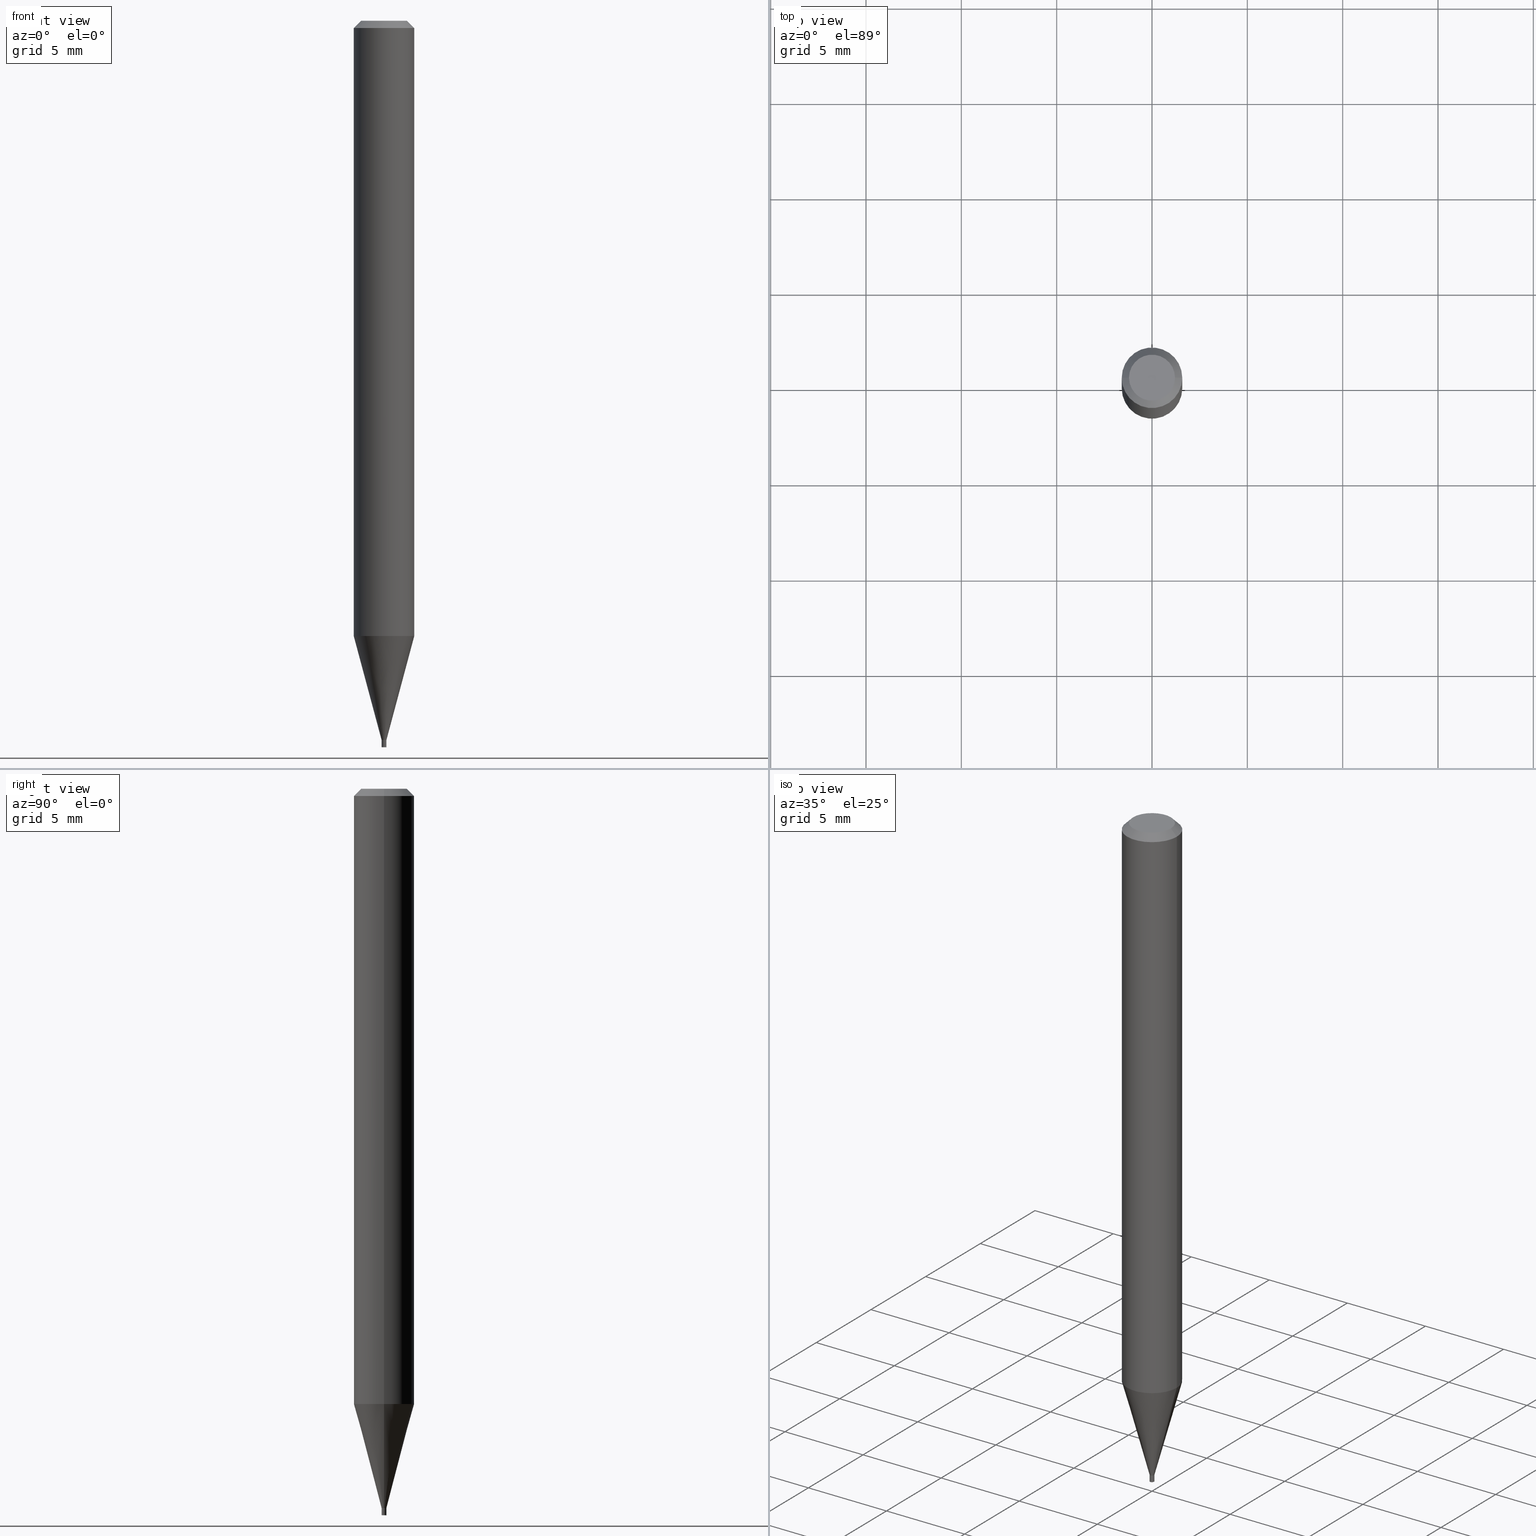
[diagram: canonical four-view strip — front | top / right | iso, engineering-drawing reading convention]
A machine part, canonical four-view strip (front | top / right | iso — engineering-drawing reading convention). The complete STEP part file that produces these views, byte-faithful:
ISO-10303-21;
HEADER;
FILE_DESCRIPTION (( 'STEP AP203' ),
    '1' );
FILE_NAME ('04045.STEP',
    '2024-03-14T16:55:15',
    ( '' ),
    ( '' ),
    'SwSTEP 2.0',
    'SolidWorks 2023',
    '' );
FILE_SCHEMA (( 'CONFIG_CONTROL_DESIGN' ));
ENDSEC;

DATA;
#1 = CARTESIAN_POINT ( 'NONE',  ( -0.004500000000000000527, -5.152875365072865772E-15, -1.484999999999999876 ) ) ;
#2 = EDGE_CURVE ( 'NONE', #231, #87, #169, .T. ) ;
#3 = CARTESIAN_POINT ( 'NONE',  ( 3.631521177184927577E-29, -5.184849788182070703E-15, -1.484999999999999876 ) ) ;
#4 = CYLINDRICAL_SURFACE ( 'NONE', #466, 0.06250000000000000000 ) ;
#5 = CIRCLE ( 'NONE', #329, 0.04749999999999999362 ) ;
#6 = VECTOR ( 'NONE', #371, 39.37007874015748143 ) ;
#7 = ADVANCED_FACE ( 'NONE', ( #281 ), #315, .T. ) ;
#8 = VERTEX_POINT ( 'NONE', #418 ) ;
#9 = EDGE_CURVE ( 'NONE', #179, #300, #91, .T. ) ;
#10 = ORIENTED_EDGE ( 'NONE', *, *, #126, .F. ) ;
#11 = APPROVAL ( #260, 'UNSPECIFIED' ) ;
#12 = ORIENTED_EDGE ( 'NONE', *, *, #363, .F. ) ;
#13 = DIRECTION ( 'NONE',  ( 1.000000000000000000, -6.982962677686265922E-15, 4.876176775795935793E-29 ) ) ;
#14 = MECHANICAL_CONTEXT ( 'NONE', #183, 'mechanical' ) ;
#15 = FACE_OUTER_BOUND ( 'NONE', #199, .T. ) ;
#16 = ORIENTED_EDGE ( 'NONE', *, *, #248, .F. ) ;
#17 = DESIGN_CONTEXT ( 'detailed design', #322, 'design' ) ;
#18 = CARTESIAN_POINT ( 'NONE',  ( 3.631521177184928138E-29, -5.184849788182071492E-15, -1.485000000000000098 ) ) ;
#19 = ORIENTED_EDGE ( 'NONE', *, *, #185, .T. ) ;
#20 = APPROVAL ( #321, 'UNSPECIFIED' ) ;
#21 = CARTESIAN_POINT ( 'NONE',  ( 3.491481338846764088E-17, 0.004999999999994815016, -1.485000000000000098 ) ) ;
#22 = EDGE_CURVE ( 'NONE', #242, #23, #291, .T. ) ;
#23 = VERTEX_POINT ( 'NONE', #412 ) ;
#24 = AXIS2_PLACEMENT_3D ( 'NONE', #395, #402, #77 ) ;
#25 = DATE_AND_TIME ( #350, #421 ) ;
#26 = CC_DESIGN_APPROVAL ( #101, ( #381 ) ) ;
#27 = CARTESIAN_POINT ( 'NONE',  ( 3.106740881786981637E-29, -4.435602607543199263E-15, -1.270407078564789183 ) ) ;
#28 = CLOSED_SHELL ( 'NONE', ( #286, #385, #108, #273 ) ) ;
#29 = CARTESIAN_POINT ( 'NONE',  ( -0.004999999999999651425, -5.149322651394068818E-15, -1.485000000000000098 ) ) ;
#30 = DIRECTION ( 'NONE',  ( -1.000000000000000000, 6.982962677686265922E-15, -4.876176775795935793E-29 ) ) ;
#31 = DIRECTION ( 'NONE',  ( -2.445468806185136597E-29, 3.491481338843145583E-15, 1.000000000000000000 ) ) ;
#32 = DIRECTION ( 'NONE',  ( -1.000000000000000000, 6.982962677686266711E-15, 0.000000000000000000 ) ) ;
#33 = APPROVAL_PERSON_ORGANIZATION ( #268, #101, #160 ) ;
#34 = AXIS2_PLACEMENT_3D ( 'NONE', #27, #31, #279 ) ;
#35 = DIRECTION ( 'NONE',  ( 1.000000000000000000, -6.982962677686267499E-15, 4.852736867747366768E-29 ) ) ;
#36 =( NAMED_UNIT ( * ) PLANE_ANGLE_UNIT ( ) SI_UNIT ( $, .RADIAN. ) );
#37 = CC_DESIGN_PERSON_AND_ORGANIZATION_ASSIGNMENT ( #42, #151, ( #192 ) ) ;
#38 = PERSON_AND_ORGANIZATION_ROLE ( 'design_supplier' ) ;
#39 = DIRECTION ( 'NONE',  ( 1.000000000000000000, -6.982962677686237523E-15, 0.000000000000000000 ) ) ;
#40 = APPROVAL_ROLE ( '' ) ;
#41 = CLOSED_SHELL ( 'NONE', ( #388, #89, #102, #7, #336, #145, #159, #352, #270, #97, #191, #320 ) ) ;
#42 = PERSON_AND_ORGANIZATION ( #390, #383 ) ;
#43 = EDGE_CURVE ( 'NONE', #345, #303, #244, .T. ) ;
#44 = CIRCLE ( 'NONE', #168, 0.005000000000000196128 ) ;
#45 = AXIS2_PLACEMENT_3D ( 'NONE', #358, #67, #32 ) ;
#46 = CIRCLE ( 'NONE', #369, 0.06250000000000000000 ) ;
#47 = ORIENTED_EDGE ( 'NONE', *, *, #82, .F. ) ;
#48 = DIRECTION ( 'NONE',  ( 0.000000000000000000, 0.000000000000000000, 1.000000000000000000 ) ) ;
#49 = ORIENTED_EDGE ( 'NONE', *, *, #185, .F. ) ;
#50 = CYLINDRICAL_SURFACE ( 'NONE', #280, 0.005000000000000000104 ) ;
#51 = ORIENTED_EDGE ( 'NONE', *, *, #313, .T. ) ;
#52 = ORIENTED_EDGE ( 'NONE', *, *, #233, .T. ) ;
#53 = DIRECTION ( 'NONE',  ( -2.445468806185136597E-29, 3.491481338843145583E-15, 1.000000000000000000 ) ) ;
#54 = CIRCLE ( 'NONE', #393, 0.06250000000000000000 ) ;
#55 = ORIENTED_EDGE ( 'NONE', *, *, #359, .T. ) ;
#56 = APPLICATION_PROTOCOL_DEFINITION ( 'international standard', 'config_control_design', 1994, #322 ) ;
#57 = PLANE ( 'NONE',  #386 ) ;
#58 = EDGE_LOOP ( 'NONE', ( #266, #47, #51, #308 ) ) ;
#59 = PERSON_AND_ORGANIZATION_ROLE ( 'design_owner' ) ;
#60 = DIRECTION ( 'NONE',  ( -2.445468806185136597E-29, 3.491481338843145583E-15, 1.000000000000000000 ) ) ;
#61 = CC_DESIGN_SECURITY_CLASSIFICATION ( #192, ( #208 ) ) ;
#62 = CARTESIAN_POINT ( 'NONE',  ( 0.004999999999999651425, -5.219764601570499986E-15, -1.485000000000000098 ) ) ;
#63 = CARTESIAN_POINT ( 'NONE',  ( 0.004500000000000000527, -5.216273120231658556E-15, -1.484999999999999876 ) ) ;
#64 = AXIS2_PLACEMENT_3D ( 'NONE', #221, #391, #331 ) ;
#65 = LINE ( 'NONE', #181, #69 ) ;
#66 = CARTESIAN_POINT ( 'NONE',  ( 0.000000000000000000, 0.000000000000000000, 0.000000000000000000 ) ) ;
#67 = DIRECTION ( 'NONE',  ( 2.445468806185136597E-29, -3.491481338843145583E-15, -1.000000000000000000 ) ) ;
#68 = CYLINDRICAL_SURFACE ( 'NONE', #367, 0.004999999999999922909 ) ;
#69 = VECTOR ( 'NONE', #215, 39.37007874015748143 ) ;
#70 = AXIS2_PLACEMENT_3D ( 'NONE', #136, #99, #175 ) ;
#71 = CC_DESIGN_PERSON_AND_ORGANIZATION_ASSIGNMENT ( #361, #110, ( #208 ) ) ;
#72 = CALENDAR_DATE ( 2024, 14, 3 ) ;
#73 = LENGTH_MEASURE_WITH_UNIT ( LENGTH_MEASURE( 0.02539999999999999897 ), #249 );
#74 = AXIS2_PLACEMENT_3D ( 'NONE', #458, #362, #284 ) ;
#75 = CARTESIAN_POINT ( 'NONE',  ( 0.004500000000000000527, -5.216273120231658556E-15, -1.484999999999999876 ) ) ;
#76 = EDGE_CURVE ( 'NONE', #87, #231, #201, .T. ) ;
#77 = DIRECTION ( 'NONE',  ( 1.000000000000000000, -6.982962677686266711E-15, 0.000000000000000000 ) ) ;
#78 = ORIENTED_EDGE ( 'NONE', *, *, #146, .F. ) ;
#79 = DIRECTION ( 'NONE',  ( 1.000000000000000000, -6.982962677686237523E-15, 0.000000000000000000 ) ) ;
#80 = EDGE_CURVE ( 'NONE', #306, #235, #423, .T. ) ;
#81 = CIRCLE ( 'NONE', #307, 0.005000000000000196128 ) ;
#82 = EDGE_CURVE ( 'NONE', #376, #224, #420, .T. ) ;
#83 = EDGE_LOOP ( 'NONE', ( #85, #408, #441, #10 ) ) ;
#84 = DATE_AND_TIME ( #296, #98 ) ;
#85 = ORIENTED_EDGE ( 'NONE', *, *, #433, .F. ) ;
#86 = VERTEX_POINT ( 'NONE', #245 ) ;
#87 = VERTEX_POINT ( 'NONE', #75 ) ;
#88 = CARTESIAN_POINT ( 'NONE',  ( 0.000000000000000000, 0.000000000000000000, 0.000000000000000000 ) ) ;
#89 = ADVANCED_FACE ( 'NONE', ( #437 ), #452, .T. ) ;
#90 = CC_DESIGN_APPROVAL ( #11, ( #208 ) ) ;
#91 = CIRCLE ( 'NONE', #34, 0.06250000000000000000 ) ;
#92 = ORIENTED_EDGE ( 'NONE', *, *, #9, .T. ) ;
#93 = CARTESIAN_POINT ( 'NONE',  ( 3.316907271900976096E-16, 0.04749999999999999362, -1.230947746555162994E-18 ) ) ;
#94 = CARTESIAN_POINT ( 'NONE',  ( 3.631521177184927577E-29, -5.184849788182070703E-15, -1.484999999999999876 ) ) ;
#95 = DIRECTION ( 'NONE',  ( 1.000000000000000000, -6.982962677686267499E-15, 4.876176775795935793E-29 ) ) ;
#96 = LINE ( 'NONE', #305, #143 ) ;
#97 = ADVANCED_FACE ( 'NONE', ( #432 ), #292, .F. ) ;
#98 = LOCAL_TIME ( 12, 55, 15.00000000000000000, #265 ) ;
#99 = DIRECTION ( 'NONE',  ( -2.445468806185136597E-29, 3.491481338843145583E-15, 1.000000000000000000 ) ) ;
#100 = FACE_OUTER_BOUND ( 'NONE', #447, .T. ) ;
#101 = APPROVAL ( #229, 'UNSPECIFIED' ) ;
#102 = ADVANCED_FACE ( 'NONE', ( #124 ), #410, .T. ) ;
#103 = DIRECTION ( 'NONE',  ( 1.000000000000000000, -6.982962677686265922E-15, 4.876176775795935793E-29 ) ) ;
#104 = VECTOR ( 'NONE', #344, 39.37007874015748143 ) ;
#105 = APPROVAL_PERSON_ORGANIZATION ( #220, #20, #40 ) ;
#106 =( NAMED_UNIT ( * ) SI_UNIT ( $, .STERADIAN. ) SOLID_ANGLE_UNIT ( ) );
#107 = DATE_AND_TIME ( #72, #290 ) ;
#108 = ADVANCED_FACE ( 'NONE', ( #232 ), #118, .T. ) ;
#109 = CARTESIAN_POINT ( 'NONE',  ( -0.005000000000000000104, -5.175508761435389793E-15, -1.500000000000000222 ) ) ;
#110 = PERSON_AND_ORGANIZATION_ROLE ( 'creator' ) ;
#111 = CIRCLE ( 'NONE', #272, 0.005000000000000000104 ) ;
#112 = CONICAL_SURFACE ( 'NONE', #430, 0.004999999999999651425, 0.2617993877991502960 ) ;
#113 = DIRECTION ( 'NONE',  ( -0.7071067811869508057, 7.493145998871811975E-15, 0.7071067811861442287 ) ) ;
#114 = DIRECTION ( 'NONE',  ( -2.445468806185136597E-29, 3.491481338843145583E-15, 1.000000000000000000 ) ) ;
#115 = CARTESIAN_POINT ( 'NONE',  ( 3.668203209277705088E-31, -5.237222008264718399E-17, -0.01499999999999999944 ) ) ;
#116 = PRODUCT_RELATED_PRODUCT_CATEGORY ( 'detail', '', ( #297 ) ) ;
#117 = EDGE_LOOP ( 'NONE', ( #397, #52, #340, #409 ) ) ;
#118 = CYLINDRICAL_SURFACE ( 'NONE', #377, 0.005000000000000000104 ) ;
#119 = ORIENTED_EDGE ( 'NONE', *, *, #368, .T. ) ;
#120 = EDGE_LOOP ( 'NONE', ( #341, #401, #125, #16 ) ) ;
#121 = AXIS2_PLACEMENT_3D ( 'NONE', #193, #147, #39 ) ;
#122 = ORIENTED_EDGE ( 'NONE', *, *, #227, .F. ) ;
#123 = ORIENTED_EDGE ( 'NONE', *, *, #76, .F. ) ;
#124 = FACE_OUTER_BOUND ( 'NONE', #262, .T. ) ;
#125 = ORIENTED_EDGE ( 'NONE', *, *, #278, .F. ) ;
#126 = EDGE_CURVE ( 'NONE', #333, #157, #81, .T. ) ;
#127 = ORIENTED_EDGE ( 'NONE', *, *, #2, .F. ) ;
#128 = ADVANCED_BREP_SHAPE_REPRESENTATION ( '04045', ( #264, #255, #453 ), #158 ) ;
#129 = FACE_OUTER_BOUND ( 'NONE', #372, .T. ) ;
#130 = ORIENTED_EDGE ( 'NONE', *, *, #43, .F. ) ;
#131 = VECTOR ( 'NONE', #141, 39.37007874015748143 ) ;
#132 = AXIS2_PLACEMENT_3D ( 'NONE', #360, #171, #35 ) ;
#133 = CARTESIAN_POINT ( 'NONE',  ( 0.000000000000000000, 0.000000000000000000, 0.000000000000000000 ) ) ;
#134 = DIRECTION ( 'NONE',  ( -2.445468806185136597E-29, 3.491481338843145583E-15, 1.000000000000000000 ) ) ;
#135 = DIRECTION ( 'NONE',  ( 1.000000000000000000, -6.982962677686237523E-15, 0.000000000000000000 ) ) ;
#136 = CARTESIAN_POINT ( 'NONE',  ( 3.668203209277704895E-29, -5.237222008264718177E-15, -1.500000000000000222 ) ) ;
#137 = DIRECTION ( 'NONE',  ( -2.445468806185136597E-29, 3.491481338843145583E-15, 1.000000000000000000 ) ) ;
#138 = LOCAL_TIME ( 12, 55, 15.00000000000000000, #188 ) ;
#139 = DIRECTION ( 'NONE',  ( -0.2588190451025215721, 5.211531920934551831E-15, 0.9659258262890679791 ) ) ;
#140 = DIRECTION ( 'NONE',  ( 1.000000000000000000, -6.982962677686224112E-15, 0.000000000000000000 ) ) ;
#141 = DIRECTION ( 'NONE',  ( 0.2588190451025215721, 1.565188264969619995E-15, 0.9659258262890679791 ) ) ;
#142 = FACE_OUTER_BOUND ( 'NONE', #349, .T. ) ;
#143 = VECTOR ( 'NONE', #450, 39.37007874015748143 ) ;
#144 = DATE_AND_TIME ( #463, #138 ) ;
#145 = ADVANCED_FACE ( 'NONE', ( #200 ), #456, .T. ) ;
#146 = EDGE_CURVE ( 'NONE', #179, #8, #267, .T. ) ;
#147 = DIRECTION ( 'NONE',  ( -2.445468806185136597E-29, 3.491481338843145583E-15, 1.000000000000000000 ) ) ;
#148 = CONICAL_SURFACE ( 'NONE', #45, 0.06250000000000000000, 0.7853981633974373988 ) ;
#149 = ORIENTED_EDGE ( 'NONE', *, *, #204, .T. ) ;
#150 = FACE_OUTER_BOUND ( 'NONE', #357, .T. ) ;
#151 = PERSON_AND_ORGANIZATION_ROLE ( 'classification_officer' ) ;
#152 = AXIS2_PLACEMENT_3D ( 'NONE', #263, #335, #438 ) ;
#153 = CARTESIAN_POINT ( 'NONE',  ( 3.106740881786981637E-29, -4.435602607543199263E-15, -1.270407078564789183 ) ) ;
#154 = DIRECTION ( 'NONE',  ( -2.438088387897960049E-29, 3.491481338843145188E-15, 1.000000000000000000 ) ) ;
#155 = PERSON_AND_ORGANIZATION ( #390, #383 ) ;
#156 = ORIENTED_EDGE ( 'NONE', *, *, #204, .F. ) ;
#157 = VERTEX_POINT ( 'NONE', #449 ) ;
#158 =( GEOMETRIC_REPRESENTATION_CONTEXT ( 3 ) GLOBAL_UNCERTAINTY_ASSIGNED_CONTEXT ( ( #346 ) ) GLOBAL_UNIT_ASSIGNED_CONTEXT ( ( #247, #36, #106 ) ) REPRESENTATION_CONTEXT ( 'NONE', 'WORKASPACE' ) );
#159 = ADVANCED_FACE ( 'NONE', ( #150 ), #4, .T. ) ;
#160 = APPROVAL_ROLE ( '' ) ;
#161 = CARTESIAN_POINT ( 'NONE',  ( 0.004999999999999922909, -3.491481338843079861E-17, 2.438088387897930324E-31 ) ) ;
#162 = ORIENTED_EDGE ( 'NONE', *, *, #82, .T. ) ;
#163 = ORIENTED_EDGE ( 'NONE', *, *, #126, .T. ) ;
#164 = CARTESIAN_POINT ( 'NONE',  ( -0.06250000000000000000, 4.440892098500626162E-16, -3.074334431409316114E-30 ) ) ;
#165 = CARTESIAN_POINT ( 'NONE',  ( -0.005000000000000000104, -5.175508761435389793E-15, -1.485000000000000098 ) ) ;
#166 = EDGE_LOOP ( 'NONE', ( #123, #127 ) ) ;
#167 = ORIENTED_EDGE ( 'NONE', *, *, #368, .F. ) ;
#168 = AXIS2_PLACEMENT_3D ( 'NONE', #173, #137, #277 ) ;
#169 = CIRCLE ( 'NONE', #330, 0.004500000000000000527 ) ;
#170 = CARTESIAN_POINT ( 'NONE',  ( -0.004500000000000000527, -5.150226137898754571E-15, -1.484999999999999876 ) ) ;
#171 = DIRECTION ( 'NONE',  ( -2.445468806185136597E-29, 3.491481338843145583E-15, 1.000000000000000000 ) ) ;
#172 = CARTESIAN_POINT ( 'NONE',  ( -8.051188380117617343E-45, 1.149496322079166104E-30, 3.292288316969884985E-16 ) ) ;
#173 = CARTESIAN_POINT ( 'NONE',  ( 3.630298442781835897E-29, -5.183104047512649988E-15, -1.484500000000000153 ) ) ;
#174 = DIRECTION ( 'NONE',  ( 1.000000000000000000, -6.982962677686267499E-15, 4.852736867747366768E-29 ) ) ;
#175 = DIRECTION ( 'NONE',  ( 1.000000000000000000, -6.982962677686332186E-15, 0.000000000000000000 ) ) ;
#176 = CIRCLE ( 'NONE', #429, 0.005000000000000000104 ) ;
#177 = LINE ( 'NONE', #210, #392 ) ;
#178 = CIRCLE ( 'NONE', #24, 0.06250000000000000000 ) ;
#179 = VERTEX_POINT ( 'NONE', #251 ) ;
#180 = FACE_OUTER_BOUND ( 'NONE', #58, .T. ) ;
#181 = CARTESIAN_POINT ( 'NONE',  ( -0.06250000000000000000, 3.840629472727444916E-16, -0.01499999999999999944 ) ) ;
#182 = DIRECTION ( 'NONE',  ( 1.000000000000000000, -6.982962677686332186E-15, 0.000000000000000000 ) ) ;
#183 = APPLICATION_CONTEXT ( 'configuration controlled 3d designs of mechanical parts and assemblies' ) ;
#184 = DIRECTION ( 'NONE',  ( -2.445468806185136877E-29, 3.491481338843145188E-15, 1.000000000000000000 ) ) ;
#185 = EDGE_CURVE ( 'NONE', #86, #8, #178, .T. ) ;
#186 = CALENDAR_DATE ( 2024, 14, 3 ) ;
#187 = CC_DESIGN_APPROVAL ( #20, ( #192 ) ) ;
#188 = COORDINATED_UNIVERSAL_TIME_OFFSET ( 5, 0, .BEHIND. ) ;
#189 = CARTESIAN_POINT ( 'NONE',  ( 3.631521177184927577E-29, -5.184849788182070703E-15, -1.484999999999999876 ) ) ;
#190 = CC_DESIGN_PERSON_AND_ORGANIZATION_ASSIGNMENT ( #289, #38, ( #208 ) ) ;
#191 = ADVANCED_FACE ( 'NONE', ( #394 ), #309, .T. ) ;
#192 = SECURITY_CLASSIFICATION ( '', '', #460 ) ;
#193 = CARTESIAN_POINT ( 'NONE',  ( 3.631521177184928138E-29, -5.184849788182071492E-15, -1.485000000000000098 ) ) ;
#194 = ORIENTED_EDGE ( 'NONE', *, *, #80, .F. ) ;
#195 = ORIENTED_EDGE ( 'NONE', *, *, #359, .F. ) ;
#196 = ORIENTED_EDGE ( 'NONE', *, *, #227, .T. ) ;
#197 = EDGE_CURVE ( 'NONE', #300, #179, #46, .T. ) ;
#198 = DIRECTION ( 'NONE',  ( 1.000000000000000000, -6.982962677686265922E-15, 4.876176775795935793E-29 ) ) ;
#199 = EDGE_LOOP ( 'NONE', ( #443, #202 ) ) ;
#200 = FACE_OUTER_BOUND ( 'NONE', #117, .T. ) ;
#201 = CIRCLE ( 'NONE', #64, 0.004500000000000000527 ) ;
#202 = ORIENTED_EDGE ( 'NONE', *, *, #363, .T. ) ;
#203 = PERSON_AND_ORGANIZATION_ROLE ( 'creator' ) ;
#204 = EDGE_CURVE ( 'NONE', #8, #86, #54, .T. ) ;
#205 = COORDINATED_UNIVERSAL_TIME_OFFSET ( 5, 0, .BEHIND. ) ;
#206 = DIRECTION ( 'NONE',  ( 2.438088387897960049E-29, -3.491481338843145188E-15, -1.000000000000000000 ) ) ;
#207 = EDGE_LOOP ( 'NONE', ( #379, #444, #194, #122 ) ) ;
#208 = PRODUCT_DEFINITION_FORMATION_WITH_SPECIFIED_SOURCE ( 'ANY', '', #297, .NOT_KNOWN. ) ;
#209 = AXIS2_PLACEMENT_3D ( 'NONE', #338, #154, #13 ) ;
#210 = CARTESIAN_POINT ( 'NONE',  ( 0.06250000000000000000, -4.811533449433679005E-16, -0.01499999999999999944 ) ) ;
#211 = CARTESIAN_POINT ( 'NONE',  ( 0.005000000000000000104, -5.272136821653149826E-15, -1.500000000000000222 ) ) ;
#212 = DIRECTION ( 'NONE',  ( 1.000000000000000000, -6.982962677686332186E-15, 0.000000000000000000 ) ) ;
#213 = EDGE_CURVE ( 'NONE', #345, #235, #378, .T. ) ;
#214 = VECTOR ( 'NONE', #139, 39.37007874015748143 ) ;
#215 = DIRECTION ( 'NONE',  ( -0.7071067811865398012, 2.468850131082175808E-15, -0.7071067811865552333 ) ) ;
#216 = DIRECTION ( 'NONE',  ( 1.000000000000000000, -6.982962677686266711E-15, 4.876176775795935793E-29 ) ) ;
#217 = SHAPE_DEFINITION_REPRESENTATION ( #252, #128 ) ;
#218 = CARTESIAN_POINT ( 'NONE',  ( 3.576687321579069994E-29, -5.368277968210015545E-15, -1.500000000000000222 ) ) ;
#219 = DIRECTION ( 'NONE',  ( -2.445468806185136597E-29, 3.491481338843145583E-15, 1.000000000000000000 ) ) ;
#220 = PERSON_AND_ORGANIZATION ( #390, #383 ) ;
#221 = CARTESIAN_POINT ( 'NONE',  ( 3.631521177184927577E-29, -5.184849788182070703E-15, -1.484999999999999876 ) ) ;
#222 = DIRECTION ( 'NONE',  ( 1.000000000000000000, -6.982962677686266711E-15, 0.000000000000000000 ) ) ;
#223 = VECTOR ( 'NONE', #113, 39.37007874015748143 ) ;
#224 = VERTEX_POINT ( 'NONE', #382 ) ;
#225 = CIRCLE ( 'NONE', #353, 0.004999999999999651425 ) ;
#226 = ORIENTED_EDGE ( 'NONE', *, *, #146, .T. ) ;
#227 = EDGE_CURVE ( 'NONE', #303, #306, #234, .T. ) ;
#228 = EDGE_LOOP ( 'NONE', ( #240, #370, #196, #12 ) ) ;
#229 = APPROVAL_STATUS ( 'not_yet_approved' ) ;
#230 = DIRECTION ( 'NONE',  ( 2.438088387897960049E-29, -3.491481338843145188E-15, -1.000000000000000000 ) ) ;
#231 = VERTEX_POINT ( 'NONE', #170 ) ;
#232 = FACE_OUTER_BOUND ( 'NONE', #228, .T. ) ;
#233 = EDGE_CURVE ( 'NONE', #224, #376, #225, .T. ) ;
#234 = LINE ( 'NONE', #454, #104 ) ;
#235 = VERTEX_POINT ( 'NONE', #165 ) ;
#236 = VECTOR ( 'NONE', #276, 39.37007874015748143 ) ;
#237 = DIMENSIONAL_EXPONENTS ( 1.000000000000000000, 0.000000000000000000, 0.000000000000000000, 0.000000000000000000, 0.000000000000000000, 0.000000000000000000, 0.000000000000000000 ) ;
#238 = EDGE_LOOP ( 'NONE', ( #301, #312, #55, #149 ) ) ;
#239 = PERSON_AND_ORGANIZATION ( #390, #383 ) ;
#240 = ORIENTED_EDGE ( 'NONE', *, *, #213, .F. ) ;
#241 = PLANE ( 'NONE',  #461 ) ;
#242 = VERTEX_POINT ( 'NONE', #302 ) ;
#243 = LOCAL_TIME ( 12, 55, 15.00000000000000000, #294 ) ;
#244 = CIRCLE ( 'NONE', #70, 0.005000000000000000104 ) ;
#245 = CARTESIAN_POINT ( 'NONE',  ( 0.06250000000000000000, -4.888073874380388472E-16, -0.01499999999999999944 ) ) ;
#246 = CARTESIAN_POINT ( 'NONE',  ( 3.631521177184928138E-29, -5.184849788182071492E-15, -1.485000000000000098 ) ) ;
#247 =( CONVERSION_BASED_UNIT ( 'INCH', #73 ) LENGTH_UNIT ( ) NAMED_UNIT ( #237 ) );
#248 = EDGE_CURVE ( 'NONE', #87, #157, #415, .T. ) ;
#249 =( LENGTH_UNIT ( ) NAMED_UNIT ( * ) SI_UNIT ( $, .METRE. ) );
#250 = DIRECTION ( 'NONE',  ( 1.000000000000000000, -6.982962677686224112E-15, 0.000000000000000000 ) ) ;
#251 = CARTESIAN_POINT ( 'NONE',  ( -0.06249999999999999306, -3.991513397693135858E-15, -1.270407078564789183 ) ) ;
#252 = PRODUCT_DEFINITION_SHAPE ( 'NONE', 'NONE',  #381 ) ;
#253 = ORIENTED_EDGE ( 'NONE', *, *, #396, .T. ) ;
#254 = DIRECTION ( 'NONE',  ( -2.445468806185136597E-29, 3.491481338843145583E-15, 1.000000000000000000 ) ) ;
#255 = MANIFOLD_SOLID_BREP ( 'Body-Move/Copy2[2]', #41 ) ;
#256 = EDGE_CURVE ( 'NONE', #224, #333, #96, .T. ) ;
#257 = ORIENTED_EDGE ( 'NONE', *, *, #465, .F. ) ;
#258 = DIRECTION ( 'NONE',  ( 1.000000000000000000, -6.982962677686266711E-15, 4.876176775795935793E-29 ) ) ;
#259 = AXIS2_PLACEMENT_3D ( 'NONE', #66, #455, #216 ) ;
#260 = APPROVAL_STATUS ( 'not_yet_approved' ) ;
#261 = ORIENTED_EDGE ( 'NONE', *, *, #197, .F. ) ;
#262 = EDGE_LOOP ( 'NONE', ( #448, #253, #19, #195 ) ) ;
#263 = CARTESIAN_POINT ( 'NONE',  ( 3.668203209277705088E-31, -5.237222008264718399E-17, -0.01499999999999999944 ) ) ;
#264 = MANIFOLD_SOLID_BREP ( 'Body-Move/Copy2[1]', #28 ) ;
#265 = COORDINATED_UNIVERSAL_TIME_OFFSET ( 5, 0, .BEHIND. ) ;
#266 = ORIENTED_EDGE ( 'NONE', *, *, #256, .F. ) ;
#267 = LINE ( 'NONE', #164, #6 ) ;
#268 = PERSON_AND_ORGANIZATION ( #390, #383 ) ;
#269 = DIRECTION ( 'NONE',  ( -1.000000000000000000, 6.982962677686265922E-15, -4.876176775795935793E-29 ) ) ;
#270 = ADVANCED_FACE ( 'NONE', ( #129 ), #446, .F. ) ;
#271 = ORIENTED_EDGE ( 'NONE', *, *, #22, .T. ) ;
#272 = AXIS2_PLACEMENT_3D ( 'NONE', #310, #419, #212 ) ;
#273 = ADVANCED_FACE ( 'NONE', ( #15 ), #57, .F. ) ;
#274 = AXIS2_PLACEMENT_3D ( 'NONE', #328, #343, #79 ) ;
#275 = DIRECTION ( 'NONE',  ( -2.445468806185136597E-29, 3.491481338843145583E-15, 1.000000000000000000 ) ) ;
#276 = DIRECTION ( 'NONE',  ( 0.7071067811869508057, -2.468850131086481016E-15, 0.7071067811861442287 ) ) ;
#277 = DIRECTION ( 'NONE',  ( 1.000000000000000000, -6.982962677686253300E-15, 0.000000000000000000 ) ) ;
#278 = EDGE_CURVE ( 'NONE', #157, #333, #44, .T. ) ;
#279 = DIRECTION ( 'NONE',  ( 1.000000000000000000, -6.982962677686262766E-15, 0.000000000000000000 ) ) ;
#280 = AXIS2_PLACEMENT_3D ( 'NONE', #133, #275, #198 ) ;
#281 = FACE_OUTER_BOUND ( 'NONE', #298, .T. ) ;
#282 = DIRECTION ( 'NONE',  ( -2.445468806185136597E-29, 3.491481338843145583E-15, 1.000000000000000000 ) ) ;
#283 = DIRECTION ( 'NONE',  ( -2.438088387897960049E-29, 3.491481338843145188E-15, 1.000000000000000000 ) ) ;
#284 = DIRECTION ( 'NONE',  ( 1.000000000000000000, -6.982962677686267499E-15, 4.876176775795935793E-29 ) ) ;
#285 = VECTOR ( 'NONE', #411, 39.37007874015748143 ) ;
#286 = ADVANCED_FACE ( 'NONE', ( #348 ), #50, .T. ) ;
#287 = CARTESIAN_POINT ( 'NONE',  ( 3.631521177184928138E-29, -5.184849788182071492E-15, -1.485000000000000098 ) ) ;
#288 = FACE_OUTER_BOUND ( 'NONE', #405, .T. ) ;
#289 = PERSON_AND_ORGANIZATION ( #390, #383 ) ;
#290 = LOCAL_TIME ( 12, 55, 15.00000000000000000, #325 ) ;
#291 = CIRCLE ( 'NONE', #132, 0.04749999999999999362 ) ;
#292 = PLANE ( 'NONE',  #209 ) ;
#293 = CARTESIAN_POINT ( 'NONE',  ( 0.000000000000000000, 0.000000000000000000, 0.000000000000000000 ) ) ;
#294 = COORDINATED_UNIVERSAL_TIME_OFFSET ( 5, 0, .BEHIND. ) ;
#295 = DIRECTION ( 'NONE',  ( -2.445468806185136597E-29, 3.491481338843145583E-15, 1.000000000000000000 ) ) ;
#296 = CALENDAR_DATE ( 2024, 14, 3 ) ;
#297 = PRODUCT ( '04045', '04045', '', ( #14 ) ) ;
#298 = EDGE_LOOP ( 'NONE', ( #404, #226, #49, #167 ) ) ;
#299 = APPROVAL_DATE_TIME ( #25, #101 ) ;
#300 = VERTEX_POINT ( 'NONE', #339 ) ;
#301 = ORIENTED_EDGE ( 'NONE', *, *, #396, .F. ) ;
#302 = CARTESIAN_POINT ( 'NONE',  ( 0.04749999999999999362, -4.035134999187572707E-16, 3.292288316969910130E-16 ) ) ;
#303 = VERTEX_POINT ( 'NONE', #211 ) ;
#304 = ORIENTED_EDGE ( 'NONE', *, *, #256, .T. ) ;
#305 = CARTESIAN_POINT ( 'NONE',  ( -0.004999999999999922909, 3.552713678800446153E-17, -2.459467545127415038E-31 ) ) ;
#306 = VERTEX_POINT ( 'NONE', #351 ) ;
#307 = AXIS2_PLACEMENT_3D ( 'NONE', #398, #53, #366 ) ;
#308 = ORIENTED_EDGE ( 'NONE', *, *, #278, .T. ) ;
#309 = CONICAL_SURFACE ( 'NONE', #323, 0.004500000000000000527, 0.7853981633980186006 ) ;
#310 = CARTESIAN_POINT ( 'NONE',  ( 3.631521177184928138E-29, -5.184849788182071492E-15, -1.485000000000000098 ) ) ;
#311 = DIRECTION ( 'NONE',  ( -2.445468806185136597E-29, 3.491481338843145583E-15, 1.000000000000000000 ) ) ;
#312 = ORIENTED_EDGE ( 'NONE', *, *, #417, .F. ) ;
#313 = EDGE_CURVE ( 'NONE', #376, #157, #355, .T. ) ;
#314 = LINE ( 'NONE', #317, #131 ) ;
#315 = CYLINDRICAL_SURFACE ( 'NONE', #259, 0.06250000000000000000 ) ;
#316 = VECTOR ( 'NONE', #184, 39.37007874015748143 ) ;
#317 = CARTESIAN_POINT ( 'NONE',  ( 0.004999999999999651425, -5.219764601570499986E-15, -1.485000000000000098 ) ) ;
#318 = CYLINDRICAL_SURFACE ( 'NONE', #74, 0.004999999999999922909 ) ;
#319 = LINE ( 'NONE', #459, #374 ) ;
#320 = ADVANCED_FACE ( 'NONE', ( #180 ), #318, .F. ) ;
#321 = APPROVAL_STATUS ( 'not_yet_approved' ) ;
#322 = APPLICATION_CONTEXT ( 'configuration controlled 3d designs of mechanical parts and assemblies' ) ;
#323 = AXIS2_PLACEMENT_3D ( 'NONE', #3, #431, #250 ) ;
#324 = DIRECTION ( 'NONE',  ( -2.445468806185136597E-29, 3.491481338843145583E-15, 1.000000000000000000 ) ) ;
#325 = COORDINATED_UNIVERSAL_TIME_OFFSET ( 5, 0, .BEHIND. ) ;
#326 = APPROVAL_DATE_TIME ( #144, #20 ) ;
#327 = DIRECTION ( 'NONE',  ( 1.000000000000000000, -6.982962677686224112E-15, 0.000000000000000000 ) ) ;
#328 = CARTESIAN_POINT ( 'NONE',  ( 3.631521177184928138E-29, -5.184849788182071492E-15, -1.485000000000000098 ) ) ;
#329 = AXIS2_PLACEMENT_3D ( 'NONE', #172, #282, #174 ) ;
#330 = AXIS2_PLACEMENT_3D ( 'NONE', #94, #60, #140 ) ;
#331 = DIRECTION ( 'NONE',  ( 1.000000000000000000, -6.982962677686224112E-15, 0.000000000000000000 ) ) ;
#332 = CC_DESIGN_PERSON_AND_ORGANIZATION_ASSIGNMENT ( #239, #59, ( #297 ) ) ;
#333 = VERTEX_POINT ( 'NONE', #462 ) ;
#334 = ORIENTED_EDGE ( 'NONE', *, *, #313, .F. ) ;
#335 = DIRECTION ( 'NONE',  ( 2.445468806185136597E-29, -3.491481338843145583E-15, -1.000000000000000000 ) ) ;
#336 = ADVANCED_FACE ( 'NONE', ( #288 ), #112, .T. ) ;
#337 = ORIENTED_EDGE ( 'NONE', *, *, #424, .F. ) ;
#338 = CARTESIAN_POINT ( 'NONE',  ( 3.631521177184928138E-29, -5.184849788182071492E-15, -1.485000000000000098 ) ) ;
#339 = CARTESIAN_POINT ( 'NONE',  ( 0.06249999999999999306, -4.872037774898590932E-15, -1.270407078564789183 ) ) ;
#340 = ORIENTED_EDGE ( 'NONE', *, *, #424, .T. ) ;
#341 = ORIENTED_EDGE ( 'NONE', *, *, #76, .T. ) ;
#342 = AXIS2_PLACEMENT_3D ( 'NONE', #93, #206, #269 ) ;
#343 = DIRECTION ( 'NONE',  ( -2.445468806185136597E-29, 3.491481338843145583E-15, 1.000000000000000000 ) ) ;
#344 = DIRECTION ( 'NONE',  ( -2.445468806185136877E-29, 3.491481338843145188E-15, 1.000000000000000000 ) ) ;
#345 = VERTEX_POINT ( 'NONE', #109 ) ;
#346 = UNCERTAINTY_MEASURE_WITH_UNIT (LENGTH_MEASURE( 1.000000000000000082E-05 ), #247, 'distance_accuracy_value', 'NONE');
#347 = CC_DESIGN_DATE_AND_TIME_ASSIGNMENT ( #365, #434, ( #192 ) ) ;
#348 = FACE_OUTER_BOUND ( 'NONE', #207, .T. ) ;
#349 = EDGE_LOOP ( 'NONE', ( #257, #130 ) ) ;
#350 = CALENDAR_DATE ( 2024, 14, 3 ) ;
#351 = CARTESIAN_POINT ( 'NONE',  ( 0.005000000000000000104, -5.219764601570503141E-15, -1.485000000000000098 ) ) ;
#352 = ADVANCED_FACE ( 'NONE', ( #414 ), #148, .T. ) ;
#353 = AXIS2_PLACEMENT_3D ( 'NONE', #18, #311, #135 ) ;
#354 = DIRECTION ( 'NONE',  ( 0.7071067811865398012, -7.319954787623229224E-15, -0.7071067811865552333 ) ) ;
#355 = LINE ( 'NONE', #161, #316 ) ;
#356 = CC_DESIGN_PERSON_AND_ORGANIZATION_ASSIGNMENT ( #155, #203, ( #381 ) ) ;
#357 = EDGE_LOOP ( 'NONE', ( #78, #92, #119, #156 ) ) ;
#358 = CARTESIAN_POINT ( 'NONE',  ( 3.668203209277705088E-31, -5.237222008264718399E-17, -0.01499999999999999944 ) ) ;
#359 = EDGE_CURVE ( 'NONE', #23, #8, #65, .T. ) ;
#360 = CARTESIAN_POINT ( 'NONE',  ( -8.051188380117617343E-45, 1.149496322079166104E-30, 3.292288316969884985E-16 ) ) ;
#361 = PERSON_AND_ORGANIZATION ( #390, #383 ) ;
#362 = DIRECTION ( 'NONE',  ( -2.445468806185136597E-29, 3.491481338843145583E-15, 1.000000000000000000 ) ) ;
#363 = EDGE_CURVE ( 'NONE', #235, #306, #111, .T. ) ;
#364 = APPROVAL_PERSON_ORGANIZATION ( #407, #11, #439 ) ;
#365 = DATE_AND_TIME ( #186, #243 ) ;
#366 = DIRECTION ( 'NONE',  ( 1.000000000000000000, -6.982962677686253300E-15, 0.000000000000000000 ) ) ;
#367 = AXIS2_PLACEMENT_3D ( 'NONE', #457, #134, #95 ) ;
#368 = EDGE_CURVE ( 'NONE', #300, #86, #319, .T. ) ;
#369 = AXIS2_PLACEMENT_3D ( 'NONE', #153, #295, #435 ) ;
#370 = ORIENTED_EDGE ( 'NONE', *, *, #43, .T. ) ;
#371 = DIRECTION ( 'NONE',  ( -2.445468806185136877E-29, 3.491481338843145188E-15, 1.000000000000000000 ) ) ;
#372 = EDGE_LOOP ( 'NONE', ( #436, #271 ) ) ;
#373 = DIRECTION ( 'NONE',  ( 1.000000000000000000, -6.982962677686265922E-15, 4.876176775795935793E-29 ) ) ;
#374 = VECTOR ( 'NONE', #416, 39.37007874015748143 ) ;
#375 = CARTESIAN_POINT ( 'NONE',  ( -0.005000000000000000104, 3.552713678800501003E-17, -2.459467545127453136E-31 ) ) ;
#376 = VERTEX_POINT ( 'NONE', #62 ) ;
#377 = AXIS2_PLACEMENT_3D ( 'NONE', #88, #254, #373 ) ;
#378 = LINE ( 'NONE', #375, #285 ) ;
#379 = ORIENTED_EDGE ( 'NONE', *, *, #465, .T. ) ;
#380 = CARTESIAN_POINT ( 'NONE',  ( 0.000000000000000000, 0.000000000000000000, 0.000000000000000000 ) ) ;
#381 = PRODUCT_DEFINITION ( 'UNKNOWN', '', #208, #17 ) ;
#382 = CARTESIAN_POINT ( 'NONE',  ( -0.004999999999999651425, -4.570418024543603127E-15, -1.485000000000000098 ) ) ;
#383 = ORGANIZATION ( 'UNSPECIFIED', 'UNSPECIFIED', '' ) ;
#384 = LINE ( 'NONE', #29, #214 ) ;
#385 = ADVANCED_FACE ( 'NONE', ( #142 ), #241, .F. ) ;
#386 = AXIS2_PLACEMENT_3D ( 'NONE', #21, #230, #30 ) ;
#387 = AXIS2_PLACEMENT_3D ( 'NONE', #287, #425, #428 ) ;
#388 = ADVANCED_FACE ( 'NONE', ( #100 ), #68, .F. ) ;
#389 = APPROVAL_DATE_TIME ( #107, #11 ) ;
#390 = PERSON ( 'UNSPECIFIED', 'UNSPECIFIED', 'UNSPECIFIED', ('UNSPECIFIED'), ('UNSPECIFIED'), ('UNSPECIFIED') ) ;
#391 = DIRECTION ( 'NONE',  ( -2.445468806185136597E-29, 3.491481338843145583E-15, 1.000000000000000000 ) ) ;
#392 = VECTOR ( 'NONE', #354, 39.37007874015748143 ) ;
#393 = AXIS2_PLACEMENT_3D ( 'NONE', #115, #399, #222 ) ;
#394 = FACE_OUTER_BOUND ( 'NONE', #83, .T. ) ;
#395 = CARTESIAN_POINT ( 'NONE',  ( 3.668203209277705088E-31, -5.237222008264718399E-17, -0.01499999999999999944 ) ) ;
#396 = EDGE_CURVE ( 'NONE', #242, #86, #177, .T. ) ;
#397 = ORIENTED_EDGE ( 'NONE', *, *, #413, .F. ) ;
#398 = CARTESIAN_POINT ( 'NONE',  ( 3.630298442781835897E-29, -5.183104047512649988E-15, -1.484500000000000153 ) ) ;
#399 = DIRECTION ( 'NONE',  ( -2.445468806185136597E-29, 3.491481338843145583E-15, 1.000000000000000000 ) ) ;
#400 = AXIS2_PLACEMENT_3D ( 'NONE', #189, #219, #327 ) ;
#401 = ORIENTED_EDGE ( 'NONE', *, *, #433, .T. ) ;
#402 = DIRECTION ( 'NONE',  ( -2.445468806185136597E-29, 3.491481338843145583E-15, 1.000000000000000000 ) ) ;
#403 = DIRECTION ( 'NONE',  ( 1.000000000000000000, 0.000000000000000000, 0.000000000000000000 ) ) ;
#404 = ORIENTED_EDGE ( 'NONE', *, *, #197, .T. ) ;
#405 = EDGE_LOOP ( 'NONE', ( #162, #451, #261, #337 ) ) ;
#406 = CC_DESIGN_DATE_AND_TIME_ASSIGNMENT ( #84, #442, ( #381 ) ) ;
#407 = PERSON_AND_ORGANIZATION ( #390, #383 ) ;
#408 = ORIENTED_EDGE ( 'NONE', *, *, #2, .T. ) ;
#409 = ORIENTED_EDGE ( 'NONE', *, *, #9, .F. ) ;
#410 = CONICAL_SURFACE ( 'NONE', #152, 0.06250000000000000000, 0.7853981633974373988 ) ;
#411 = DIRECTION ( 'NONE',  ( -2.445468806185136877E-29, 3.491481338843145188E-15, 1.000000000000000000 ) ) ;
#412 = CARTESIAN_POINT ( 'NONE',  ( -0.04749999999999999362, 3.578768372314216422E-16, 3.292288316969860333E-16 ) ) ;
#413 = EDGE_CURVE ( 'NONE', #224, #179, #384, .T. ) ;
#414 = FACE_OUTER_BOUND ( 'NONE', #238, .T. ) ;
#415 = LINE ( 'NONE', #63, #236 ) ;
#416 = DIRECTION ( 'NONE',  ( -2.445468806185136877E-29, 3.491481338843145188E-15, 1.000000000000000000 ) ) ;
#417 = EDGE_CURVE ( 'NONE', #23, #242, #5, .T. ) ;
#418 = CARTESIAN_POINT ( 'NONE',  ( -0.06250000000000000000, -1.799898203962860752E-15, -0.01499999999999999944 ) ) ;
#419 = DIRECTION ( 'NONE',  ( -2.445468806185136597E-29, 3.491481338843145583E-15, 1.000000000000000000 ) ) ;
#420 = CIRCLE ( 'NONE', #121, 0.004999999999999651425 ) ;
#421 = LOCAL_TIME ( 12, 55, 15.00000000000000000, #205 ) ;
#422 = DIRECTION ( 'NONE',  ( -2.445468806185136597E-29, 3.491481338843145583E-15, 1.000000000000000000 ) ) ;
#423 = CIRCLE ( 'NONE', #387, 0.005000000000000000104 ) ;
#424 = EDGE_CURVE ( 'NONE', #376, #300, #314, .T. ) ;
#425 = DIRECTION ( 'NONE',  ( -2.445468806185136597E-29, 3.491481338843145583E-15, 1.000000000000000000 ) ) ;
#426 = LINE ( 'NONE', #1, #223 ) ;
#427 = DIRECTION ( 'NONE',  ( 1.000000000000000000, -6.982962677686237523E-15, 0.000000000000000000 ) ) ;
#428 = DIRECTION ( 'NONE',  ( 1.000000000000000000, -6.982962677686332186E-15, 0.000000000000000000 ) ) ;
#429 = AXIS2_PLACEMENT_3D ( 'NONE', #464, #422, #182 ) ;
#430 = AXIS2_PLACEMENT_3D ( 'NONE', #246, #324, #427 ) ;
#431 = DIRECTION ( 'NONE',  ( -2.445468806185136597E-29, 3.491481338843145583E-15, 1.000000000000000000 ) ) ;
#432 = FACE_OUTER_BOUND ( 'NONE', #166, .T. ) ;
#433 = EDGE_CURVE ( 'NONE', #231, #333, #426, .T. ) ;
#434 = DATE_TIME_ROLE ( 'classification_date' ) ;
#435 = DIRECTION ( 'NONE',  ( 1.000000000000000000, -6.982962677686262766E-15, 0.000000000000000000 ) ) ;
#436 = ORIENTED_EDGE ( 'NONE', *, *, #417, .T. ) ;
#437 = FACE_OUTER_BOUND ( 'NONE', #120, .T. ) ;
#438 = DIRECTION ( 'NONE',  ( -1.000000000000000000, 6.982962677686266711E-15, 0.000000000000000000 ) ) ;
#439 = APPROVAL_ROLE ( '' ) ;
#440 = ORIENTED_EDGE ( 'NONE', *, *, #233, .F. ) ;
#441 = ORIENTED_EDGE ( 'NONE', *, *, #248, .T. ) ;
#442 = DATE_TIME_ROLE ( 'creation_date' ) ;
#443 = ORIENTED_EDGE ( 'NONE', *, *, #80, .T. ) ;
#444 = ORIENTED_EDGE ( 'NONE', *, *, #213, .T. ) ;
#445 = APPLICATION_PROTOCOL_DEFINITION ( 'international standard', 'config_control_design', 1994, #183 ) ;
#446 = PLANE ( 'NONE',  #342 ) ;
#447 = EDGE_LOOP ( 'NONE', ( #440, #304, #163, #334 ) ) ;
#448 = ORIENTED_EDGE ( 'NONE', *, *, #22, .F. ) ;
#449 = CARTESIAN_POINT ( 'NONE',  ( 0.005000000000000196128, -5.218018860901083215E-15, -1.484500000000000153 ) ) ;
#450 = DIRECTION ( 'NONE',  ( -2.445468806185136877E-29, 3.491481338843145188E-15, 1.000000000000000000 ) ) ;
#451 = ORIENTED_EDGE ( 'NONE', *, *, #413, .T. ) ;
#452 = CONICAL_SURFACE ( 'NONE', #400, 0.004500000000000000527, 0.7853981633980186006 ) ;
#453 = AXIS2_PLACEMENT_3D ( 'NONE', #380, #48, #403 ) ;
#454 = CARTESIAN_POINT ( 'NONE',  ( 0.005000000000000000104, -3.491481338843132862E-17, 2.438088387897967984E-31 ) ) ;
#455 = DIRECTION ( 'NONE',  ( -2.445468806185136597E-29, 3.491481338843145583E-15, 1.000000000000000000 ) ) ;
#456 = CONICAL_SURFACE ( 'NONE', #274, 0.004999999999999651425, 0.2617993877991502960 ) ;
#457 = CARTESIAN_POINT ( 'NONE',  ( 0.000000000000000000, 0.000000000000000000, 0.000000000000000000 ) ) ;
#458 = CARTESIAN_POINT ( 'NONE',  ( 0.000000000000000000, 0.000000000000000000, 0.000000000000000000 ) ) ;
#459 = CARTESIAN_POINT ( 'NONE',  ( 0.06250000000000000000, -4.364351673553916694E-16, 3.047610484872459871E-30 ) ) ;
#460 = SECURITY_CLASSIFICATION_LEVEL ( 'unclassified' ) ;
#461 = AXIS2_PLACEMENT_3D ( 'NONE', #218, #283, #103 ) ;
#462 = CARTESIAN_POINT ( 'NONE',  ( -0.005000000000000196128, -5.147576910724643370E-15, -1.484500000000000153 ) ) ;
#463 = CALENDAR_DATE ( 2024, 14, 3 ) ;
#464 = CARTESIAN_POINT ( 'NONE',  ( 3.668203209277704895E-29, -5.237222008264718177E-15, -1.500000000000000222 ) ) ;
#465 = EDGE_CURVE ( 'NONE', #303, #345, #176, .T. ) ;
#466 = AXIS2_PLACEMENT_3D ( 'NONE', #293, #114, #258 ) ;
ENDSEC;
END-ISO-10303-21;
